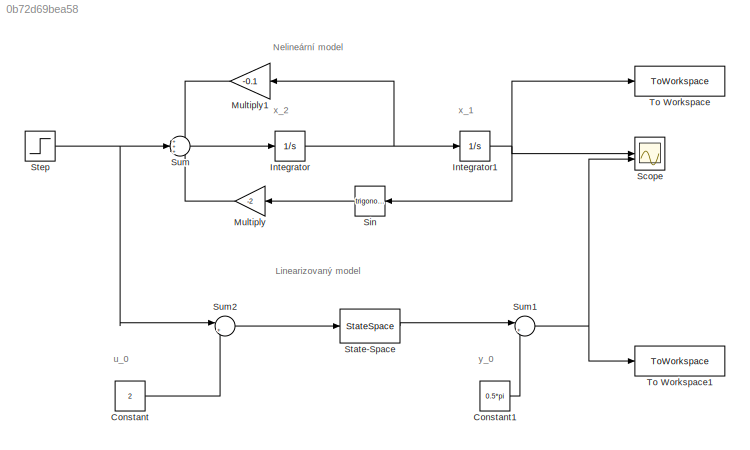
MODEL slx_0b72d69bea58
KIND model
CONFIG AbsTol = auto
CONFIG EnableMultiTasking = off
CONFIG FixedStep = auto
CONFIG MaxStep = auto
CONFIG MinStep = auto
CONFIG RelTol = 1e-3
CONFIG SampleTimeConstraint = Unconstrained
CONFIG SolverName = VariableStepAuto
CONFIG StartTime = 0.0
CONFIG StopTime = 10.0
BLOCK [Constant] Constant
  Value = 2
BLOCK [Constant] Constant1
  Value = 0.5*pi
BLOCK [Integrator] Integrator
BLOCK [Integrator] Integrator1
  InitialCondition = pi/2
BLOCK [Gain] Multiply
  Gain = -2
  NameLocation = top
BLOCK [Gain] Multiply1
  Gain = -0.1
  NameLocation = top
BLOCK [Scope] Scope
  Floating = off
  NumInputPorts = 2
  ScopeSpecificationString = Simulink.scopes.TimeScopeBlockCfg('CurrentConfiguration', extmgr.ConfigurationSet(extmgr.Configuration('Core','General UI',true),extmgr.Configuration('Core','Source UI',true),extmgr.Configuration('Sources','WiredSimulink',true),extmgr.Configuration('Visuals','Time Domain',true,'SerializedDisplays',{struct('MinYLimReal','-32.91829','MaxYLimReal','5.40292','YLabelReal','','MinYLimMag','0.00000','Max...<+1459ch>
BLOCK [Trigonometry] Sin
  NameLocation = top
BLOCK [StateSpace] State-Space
  A = [0 1; 0 -0.1]
  B = [0; 1]
  C = [1 0]
  D = 0
  InitialCondition = 0
BLOCK [Step] Step
  Before = 2
  SampleTime = 0
BLOCK [Sum] Sum
  Inputs = +++
BLOCK [Sum] Sum1
  Inputs = |++
BLOCK [Sum] Sum2
  Inputs = |+-
BLOCK [ToWorkspace] To Workspace
  FixptAsFi = on
  MaxDataPoints = inf
  SampleTime = -1
  SaveFormat = Timeseries
  VariableName = nonlinear
BLOCK [ToWorkspace] To Workspace1
  FixptAsFi = on
  MaxDataPoints = inf
  SampleTime = -1
  SaveFormat = Timeseries
  VariableName = linear
ANNOTATION (root): Linearizovaný model
ANNOTATION (root): Nelineární model
ANNOTATION (root): u_0
ANNOTATION (root): x_1
ANNOTATION (root): x_2
ANNOTATION (root): y_0
LINE Constant1:1 -> Sum1:2
LINE Constant:1 -> Sum2:2
NET Integrator1:1 -> Scope:1, Sin:1, To Workspace:1
NET Integrator:1 -> Integrator1:1, Multiply1:1
LINE Multiply1:1 -> Sum:1
LINE Multiply:1 -> Sum:3
LINE Sin:1 -> Multiply:1
LINE State-Space:1 -> Sum1:1
NET Step:1 -> Sum2:1, Sum:2
NET Sum1:1 -> Scope:2, To Workspace1:1
LINE Sum2:1 -> State-Space:1
LINE Sum:1 -> Integrator:1
note: NET lines group one-source signal fan-out (src -> all destinations, sorted); 1:1 wires keep LINE
